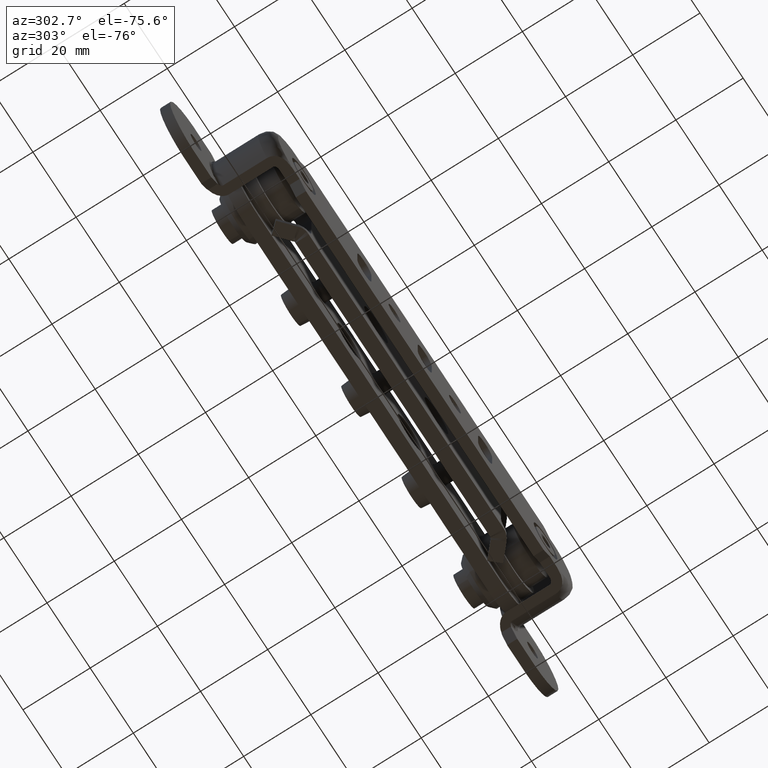
[diagram: clean part render]
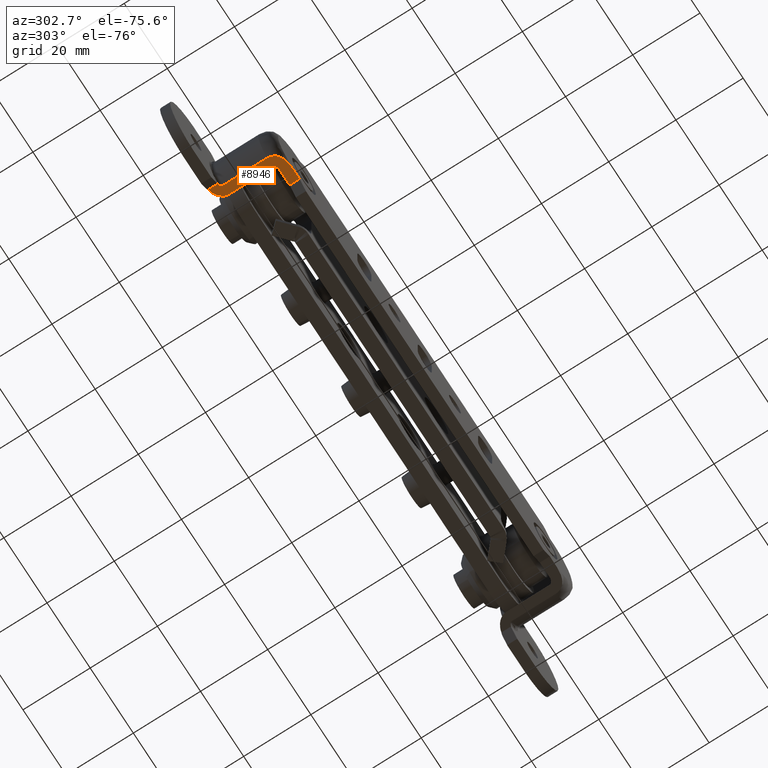
[diagram: same view with one face highlighted and labeled with its STEP entity id]
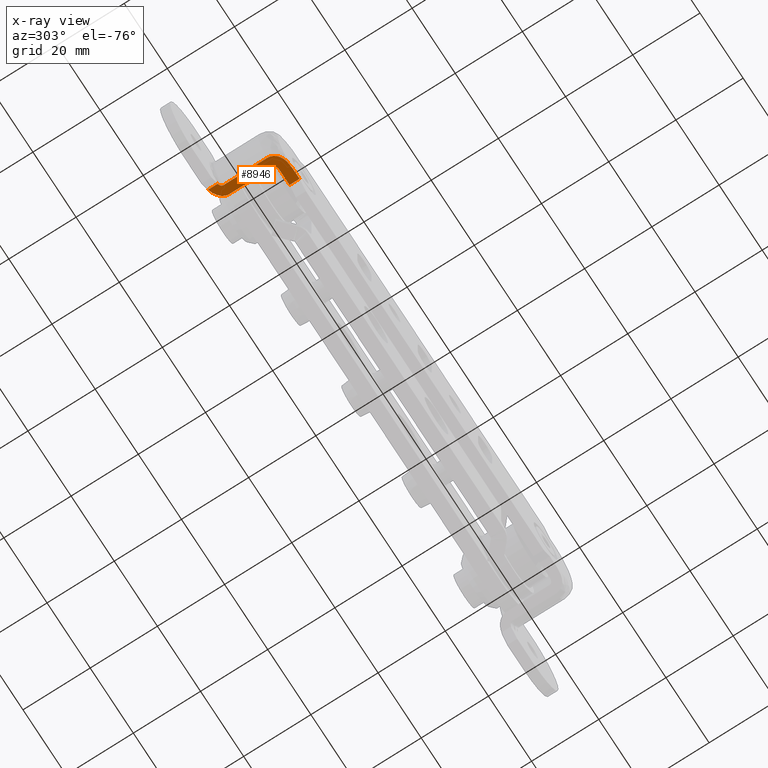
[diagram: x-ray of the same camera — body ghosted, the highlighted face saturated]
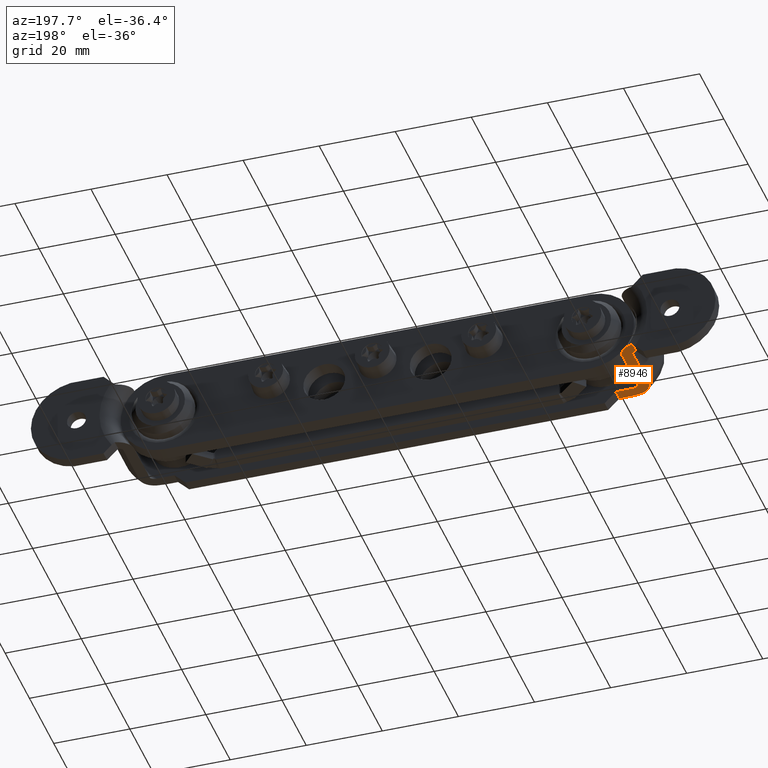
[diagram: same view with one face highlighted and labeled with its STEP entity id]
A machine part, auxiliary view. The second image highlights one B-rep face of the part: STEP entity #8946.
The next image is the same camera in x-ray: the body ghosted, the highlighted face saturated — about 0% of this face is hidden behind the body in this view.
A second angle (auxiliary view) of the same face is appended — the face is thin or edge-on in the first view.
In plain terms, the highlighted planar face has unit normal (0, 0, 1).
Its self-contained STEP definition (entity closure, byte-faithful):
#199 = CARTESIAN_POINT ( 'NONE',  ( -64.17467578644873072, 17.00000280040921297, -8.999999999999998224 ) ) ;
#305 = CARTESIAN_POINT ( 'NONE',  ( -58.99627897886185934, 0.000000000000000000, -9.000000000000001776 ) ) ;
#350 = CARTESIAN_POINT ( 'NONE',  ( -61.42061484230548984, 0.02279593249890190035, -9.000000000000001776 ) ) ;
#356 = CARTESIAN_POINT ( 'NONE',  ( -67.53284671570985154, 20.72370841365938787, -9.000000000000001776 ) ) ;
#367 = ORIENTED_EDGE ( 'NONE', *, *, #8689, .F. ) ;
#397 = CARTESIAN_POINT ( 'NONE',  ( -61.47324816656067981, 0.02481633595312313437, -9.000000000000001776 ) ) ;
#400 = CARTESIAN_POINT ( 'NONE',  ( -65.26095846486273899, 19.37750221460411737, -9.000000000000000000 ) ) ;
#444 = CARTESIAN_POINT ( 'NONE',  ( -65.09058405374237566, 19.19933818434314787, -9.000000000000000000 ) ) ;
#472 = CARTESIAN_POINT ( 'NONE',  ( -63.47445294263462046, 3.139074689296596610, -9.000000000000001776 ) ) ;
#517 = VECTOR ( 'NONE', #3767, 1000.000000000000000 ) ;
#646 = ORIENTED_EDGE ( 'NONE', *, *, #5177, .F. ) ;
#654 = CARTESIAN_POINT ( 'NONE',  ( -63.90477869132573119, 3.399701412393802524, -9.000000000000003553 ) ) ;
#811 = EDGE_CURVE ( 'NONE', #8714, #7723, #7730, .T. ) ;
#866 = CARTESIAN_POINT ( 'NONE',  ( -68.00000000000002842, 17.96227521806613936, -8.999999999999943157 ) ) ;
#1023 = CARTESIAN_POINT ( 'NONE',  ( -68.00000000000002842, 17.96227521806613936, -8.999999999999943157 ) ) ;
#1033 = CARTESIAN_POINT ( 'NONE',  ( -61.34489819457827053, 0.02009384545437246580, -9.000000000000001776 ) ) ;
#1061 = PLANE ( 'NONE',  #8224 ) ;
#1075 = CARTESIAN_POINT ( 'NONE',  ( -60.49684226313189583, 0.002975557048721465866, -9.000000000000001776 ) ) ;
#1081 = CARTESIAN_POINT ( 'NONE',  ( -64.65118848250646977, 18.61914767885723165, -9.000000000000001776 ) ) ;
#1109 = EDGE_CURVE ( 'NONE', #4795, #4133, #1210, .T. ) ;
#1169 = VECTOR ( 'NONE', #8180, 1000.000000000000000 ) ;
#1170 = CARTESIAN_POINT ( 'NONE',  ( -65.80245331666499453, 19.86577989397900978, -9.000000000000003553 ) ) ;
#1210 = LINE ( 'NONE', #5406, #1169 ) ;
#1260 = CARTESIAN_POINT ( 'NONE',  ( -62.73078341576943018, 0.1246777835703829912, -9.000000000000000000 ) ) ;
#1304 = DIRECTION ( 'NONE',  ( -1.000000000000000000, 0.000000000000000000, 0.000000000000000000 ) ) ;
#1350 = CARTESIAN_POINT ( 'NONE',  ( -65.83999515682054948, 1.435453540126782723, -9.000000000000001776 ) ) ;
#1643 = ORIENTED_EDGE ( 'NONE', *, *, #6528, .T. ) ;
#1677 = VERTEX_POINT ( 'NONE', #6749 ) ;
#1754 = CARTESIAN_POINT ( 'NONE',  ( -59.69667796316264230, 0.0002075198999452810330, -9.000000000000003553 ) ) ;
#1758 = CARTESIAN_POINT ( 'NONE',  ( -66.20249008964026416, 20.13302662261079234, -9.000000000000005329 ) ) ;
#1771 = B_SPLINE_CURVE_WITH_KNOTS ( 'NONE', 3,
 ( #866, #4928, #4342, #3022, #7840, #2309, #4391, #2892, #8421, #2214 ),
 .UNSPECIFIED., .F., .F.,
 ( 4, 2, 2, 2, 4 ),
 ( 0.006199016340580815188, 0.006584358985344611684, 0.006969701630108407313, 0.007355044274872202942, 0.007740386919635999438 ),
 .UNSPECIFIED. ) ;
#1798 = CARTESIAN_POINT ( 'NONE',  ( -66.85106329332997177, 20.46147829233893845, -9.000000000000001776 ) ) ;
#1845 = EDGE_CURVE ( 'NONE', #5879, #7529, #2773, .T. ) ;
#1886 = CARTESIAN_POINT ( 'NONE',  ( -65.00936237280822638, 0.7827664732644395995, -9.000000000000001776 ) ) ;
#1941 = DIRECTION ( 'NONE',  ( -0.000000000000000000, 1.000000000000000000, -0.000000000000000000 ) ) ;
#1974 = CARTESIAN_POINT ( 'NONE',  ( 59.00000000000000000, 3.000000000000000000, -9.000000000000001776 ) ) ;
#1980 = CARTESIAN_POINT ( 'NONE',  ( -62.72644104743438476, 0.1241123016175773308, -9.000000000000000000 ) ) ;
#2012 = CARTESIAN_POINT ( 'NONE',  ( -62.98896920703085556, 3.015566849190165488, -9.000000000000000000 ) ) ;
#2025 = CARTESIAN_POINT ( 'NONE',  ( -63.95567946769327250, 0.3792884699072048282, -9.000000000000003553 ) ) ;
#2039 = VERTEX_POINT ( 'NONE', #5982 ) ;
#2069 = CARTESIAN_POINT ( 'NONE',  ( -63.92669555675943371, 0.3706002052444994366, -9.000000000000003553 ) ) ;
#2128 = ORIENTED_EDGE ( 'NONE', *, *, #1109, .F. ) ;
#2131 = ORIENTED_EDGE ( 'NONE', *, *, #6003, .F. ) ;
#2214 = CARTESIAN_POINT ( 'NONE',  ( -66.93725393319363093, 17.00000000000007816, -9.000000000000001776 ) ) ;
#2256 = ORIENTED_EDGE ( 'NONE', *, *, #1845, .F. ) ;
#2309 = CARTESIAN_POINT ( 'NONE',  ( -67.19935369845809703, 17.57438427322858843, -9.000000000000003553 ) ) ;
#2381 = CARTESIAN_POINT ( 'NONE',  ( -60.23405344203700906, 0.001599432324862048093, -9.000000000000003553 ) ) ;
#2465 = CARTESIAN_POINT ( 'NONE',  ( -60.19679675217615511, 0.001425029715424259514, -9.000000000000003553 ) ) ;
#2492 = CARTESIAN_POINT ( 'NONE',  ( -64.17467578644873072, 4.000000000000000000, -9.000000000000001776 ) ) ;
#2515 = CARTESIAN_POINT ( 'NONE',  ( -67.99999999999997158, 20.84661142107295007, -9.000000000000001776 ) ) ;
#2557 = CARTESIAN_POINT ( 'NONE',  ( -66.04356545457692107, 1.651733367576155853, -9.000000000000005329 ) ) ;
#2596 = CARTESIAN_POINT ( 'NONE',  ( -66.93722149341820682, 3.574652381409141988, -9.000000000000001776 ) ) ;
#2601 = CARTESIAN_POINT ( 'NONE',  ( -67.07668570014867271, 20.55875690415725643, -8.999999999999998224 ) ) ;
#2640 = CARTESIAN_POINT ( 'NONE',  ( -63.94409775497640425, 0.3758053830288545227, -9.000000000000003553 ) ) ;
#2682 = EDGE_CURVE ( 'NONE', #7529, #2039, #3922, .T. ) ;
#2690 = CARTESIAN_POINT ( 'NONE',  ( -66.01057973287821312, 1.614854538624034053, -9.000000000000001776 ) ) ;
#2732 = CARTESIAN_POINT ( 'NONE',  ( -64.41210828691204426, 0.5180409605082448854, -9.000000000000001776 ) ) ;
#2766 = VECTOR ( 'NONE', #6452, 1000.000000000000000 ) ;
#2773 = LINE ( 'NONE', #5539, #3149 ) ;
#2892 = CARTESIAN_POINT ( 'NONE',  ( -66.97740501048104989, 17.25769637149324254, -9.000000000000003553 ) ) ;
#3022 = CARTESIAN_POINT ( 'NONE',  ( -67.51509680362731558, 17.79778224756964988, -9.000000000000000000 ) ) ;
#3056 = VECTOR ( 'NONE', #1941, 1000.000000000000000 ) ;
#3090 = CARTESIAN_POINT ( 'NONE',  ( -58.00000000000013500, 0.000000000000000000, -9.000000000000001776 ) ) ;
#3127 = DIRECTION ( 'NONE',  ( -0.000000000000000000, 0.000000000000000000, 1.000000000000000000 ) ) ;
#3138 = CARTESIAN_POINT ( 'NONE',  ( -61.48364454195650097, 0.02522853426618847442, -9.000000000000001776 ) ) ;
#3149 = VECTOR ( 'NONE', #7665, 1000.000000000000000 ) ;
#3167 = FACE_OUTER_BOUND ( 'NONE', #6048, .T. ) ;
#3212 = CARTESIAN_POINT ( 'NONE',  ( -64.05905132844281979, 3.600784533645108532, -8.999999999999998224 ) ) ;
#3229 = CARTESIAN_POINT ( 'NONE',  ( -63.63520051282576873, 0.2903481720600624705, -9.000000000000001776 ) ) ;
#3259 = CARTESIAN_POINT ( 'NONE',  ( -67.99999999999997158, 0.000000000000000000, -9.000000000000001776 ) ) ;
#3361 = CARTESIAN_POINT ( 'NONE',  ( -62.57592062619804807, 0.1054841539096383479, -9.000000000000001776 ) ) ;
#3395 = CARTESIAN_POINT ( 'NONE',  ( -64.15906121609934587, 3.831848299327946350, -9.000000000000003553 ) ) ;
#3767 = DIRECTION ( 'NONE',  ( -0.000000000000000000, 1.000000000000000000, -0.000000000000000000 ) ) ;
#3819 = CARTESIAN_POINT ( 'NONE',  ( -61.18640405122805959, 0.01512959411794043661, -9.000000000000001776 ) ) ;
#3922 = LINE ( 'NONE', #8143, #3056 ) ;
#4004 = CARTESIAN_POINT ( 'NONE',  ( -66.21489867643484217, 1.850670901860933748, -9.000000000000003553 ) ) ;
#4133 = VERTEX_POINT ( 'NONE', #8027 ) ;
#4342 = CARTESIAN_POINT ( 'NONE',  ( -67.74980989571328394, 17.89913187267034900, -9.000000000000003553 ) ) ;
#4391 = CARTESIAN_POINT ( 'NONE',  ( -67.10870574329956639, 17.47864565875020304, -9.000000000000001776 ) ) ;
#4461 = LINE ( 'NONE', #7951, #517 ) ;
#4507 = CARTESIAN_POINT ( 'NONE',  ( -60.23995565308170796, 0.001629326539081415092, -9.000000000000001776 ) ) ;
#4556 = CARTESIAN_POINT ( 'NONE',  ( -64.20632508626111701, 17.48278231892906831, -9.000000000000003553 ) ) ;
#4638 = CARTESIAN_POINT ( 'NONE',  ( -66.63960664709823334, 2.566507873351498326, -9.000000000000000000 ) ) ;
#4673 = CARTESIAN_POINT ( 'NONE',  ( -62.65891053163814917, 2.999999999999721556, -9.000000000000001776 ) ) ;
#4733 = CARTESIAN_POINT ( 'NONE',  ( -66.86281778183821700, 3.163110897423166978, -9.000000000000003553 ) ) ;
#4769 = CARTESIAN_POINT ( 'NONE',  ( -63.76909031524316873, 3.296221886127323142, -9.000000000000005329 ) ) ;
#4780 = CARTESIAN_POINT ( 'NONE',  ( -66.05864196809351085, 1.668898467027464694, -9.000000000000003553 ) ) ;
#4795 = VERTEX_POINT ( 'NONE', #7402 ) ;
#4825 = CARTESIAN_POINT ( 'NONE',  ( -66.93724683350782811, 4.000000000000003553, -8.999991953236266440 ) ) ;
#4928 = CARTESIAN_POINT ( 'NONE',  ( -67.87391239341377513, 17.93706646115579417, -9.000000000000001776 ) ) ;
#4967 = VERTEX_POINT ( 'NONE', #1023 ) ;
#4974 = CARTESIAN_POINT ( 'NONE',  ( -62.65891053163814917, 2.999999999999721556, -9.000000000000001776 ) ) ;
#5052 = CARTESIAN_POINT ( 'NONE',  ( -64.17467578644873072, 21.00000000000000000, -8.999999999999998224 ) ) ;
#5144 = CARTESIAN_POINT ( 'NONE',  ( -60.24411822185331999, 0.001650823027962449461, -9.000000000000005329 ) ) ;
#5177 = EDGE_CURVE ( 'NONE', #5998, #8714, #6850, .T. ) ;
#5190 = CARTESIAN_POINT ( 'NONE',  ( -59.30725760537736591, 1.003040517905943966E-07, -9.000000000000001776 ) ) ;
#5281 = CARTESIAN_POINT ( 'NONE',  ( -64.17467578644873072, 17.00000280040921297, -8.999999999999998224 ) ) ;
#5309 = ORIENTED_EDGE ( 'NONE', *, *, #811, .F. ) ;
#5320 = CARTESIAN_POINT ( 'NONE',  ( -63.28547100039168072, 0.2095249812817248647, -9.000000000000000000 ) ) ;
#5356 = CARTESIAN_POINT ( 'NONE',  ( -62.82476275316820136, 2.999999999999944045, -9.000000000000003553 ) ) ;
#5406 = CARTESIAN_POINT ( 'NONE',  ( -66.93725393319377304, 21.00000000000000000, -8.999999999999998224 ) ) ;
#5410 = CARTESIAN_POINT ( 'NONE',  ( -62.65756592482950538, 0.1153453441225205517, -9.000000000000001776 ) ) ;
#5482 = CARTESIAN_POINT ( 'NONE',  ( -58.99627897886185934, 0.000000000000000000, -9.000000000000001776 ) ) ;
#5504 = CARTESIAN_POINT ( 'NONE',  ( -66.55018215824030392, 2.379908710597004262, -9.000000000000001776 ) ) ;
#5539 = CARTESIAN_POINT ( 'NONE',  ( -67.99999999999997158, 0.000000000000000000, -9.000000000000001776 ) ) ;
#5767 = ORIENTED_EDGE ( 'NONE', *, *, #7508, .T. ) ;
#5818 = CARTESIAN_POINT ( 'NONE',  ( -60.01616844543300999, 0.0008124937213012955626, -9.000000000000005329 ) ) ;
#5867 = CARTESIAN_POINT ( 'NONE',  ( -64.33096232618949273, 17.95787206477898934, -9.000000000000003553 ) ) ;
#5879 = VERTEX_POINT ( 'NONE', #5482 ) ;
#5908 = CARTESIAN_POINT ( 'NONE',  ( -61.48670380652112044, 0.02535021123681122437, -9.000000000000000000 ) ) ;
#5952 = CARTESIAN_POINT ( 'NONE',  ( -60.22198567372003453, 0.001540352850120249410, -9.000000000000001776 ) ) ;
#5982 = CARTESIAN_POINT ( 'NONE',  ( -58.00000000000013500, 2.999999999999999112, -9.000000000000001776 ) ) ;
#5997 = CARTESIAN_POINT ( 'NONE',  ( -63.80342834129602636, 0.3351171348793549609, -9.000000000000003553 ) ) ;
#5998 = VERTEX_POINT ( 'NONE', #4974 ) ;
#6003 = EDGE_CURVE ( 'NONE', #4967, #4795, #1771, .T. ) ;
#6031 = DIRECTION ( 'NONE',  ( 1.000000000000000000, 0.000000000000000000, 0.000000000000000000 ) ) ;
#6038 = B_SPLINE_CURVE_WITH_KNOTS ( 'NONE', 3,
 ( #2515, #7460, #356, #2601, #1798, #1758, #1170, #400, #444, #7272, #1081, #6629, #5867, #4556, #8638, #5281 ),
 .UNSPECIFIED., .F., .F.,
 ( 4, 2, 2, 2, 2, 2, 2, 4 ),
 ( 0.02266943965658084481, 0.02339448191285991088, 0.02411952416913897695, 0.02556960868169715073, 0.02629465093797625150, 0.02701969319425535226, 0.02774473545053445303, 0.02846977770681355380 ),
 .UNSPECIFIED. ) ;
#6048 = EDGE_LOOP ( 'NONE', ( #2256, #1643, #2128, #2131, #5767, #8813, #5309, #646, #367, #6744 ) ) ;
#6082 = LINE ( 'NONE', #1974, #8947 ) ;
#6452 = DIRECTION ( 'NONE',  ( 0.000000000000000000, 1.000000000000000000, 0.000000000000000000 ) ) ;
#6528 = EDGE_CURVE ( 'NONE', #5879, #4133, #6714, .T. ) ;
#6579 = CARTESIAN_POINT ( 'NONE',  ( -61.45759056018216171, 0.02420196636524500622, -9.000000000000001776 ) ) ;
#6629 = CARTESIAN_POINT ( 'NONE',  ( -64.42185174443321216, 18.18497390192303698, -9.000000000000003553 ) ) ;
#6714 = B_SPLINE_CURVE_WITH_KNOTS ( 'NONE', 3,
 ( #305, #5190, #1754, #5818, #8589, #2465, #5952, #2381, #4507, #7268, #5144, #7915, #1075, #7231, #3819, #1033, #350, #6579, #397, #3138, #5908, #8680, #7999, #8226, #3361, #5410, #8185, #8088, #1980, #1260, #7406, #5320, #3229, #5997, #8949, #2069, #2640, #2025, #8768, #2732, #1886, #8812, #1350, #8134, #2690, #2557, #4780, #4004, #6720, #5504, #4638, #4733, #2596, #4825 ),
 .UNSPECIFIED., .F., .F.,
 ( 4, 1, 1, 1, 1, 1, 1, 1, 2, 2, 1, 1, 1, 1, 1, 2, 2, 1, 1, 1, 1, 1, 2, 2, 1, 1, 1, 1, 1, 2, 2, 1, 1, 1, 1, 2, 2, 2, 2, 4 ),
 ( 0.000000000000000000, 0.06249999999967280340, 0.09374999999950919816, 0.1093749999994274025, 0.1171874999993865046, 0.1210937499993660627, 0.1230468749993558347, 0.1240234374993507138, 0.1245117187493501865, 0.1249999999993496591, 0.1874999999993229860, 0.2187499999993096633, 0.2343749999993018363, 0.2421874999992979505, 0.2460937499992959798, 0.2480468749992949806, 0.2499999999992940092, 0.3124999999993203770, 0.3437499999993345878, 0.3593749999993438582, 0.3671874999993485211, 0.3710937499993508526, 0.3730468749993543498, 0.3749999999993577915, 0.4374999999994657052, 0.4687499999995196620, 0.4843749999995466404, 0.4921874999995622391, 0.4960937499995679012, 0.4980468749995707323, 0.4999999999995735633, 0.6249999999996838085, 0.6874999999997388755, 0.7187499999997647437, 0.7343749999997776223, 0.7421874999997826183, 0.7499999999997875033, 0.8124999999998406830, 0.8749999999998938627, 1.000000000000000000 ),
 .UNSPECIFIED. ) ;
#6720 = CARTESIAN_POINT ( 'NONE',  ( -66.33751331353953162, 2.021148662660044781, -9.000000000000000000 ) ) ;
#6744 = ORIENTED_EDGE ( 'NONE', *, *, #2682, .F. ) ;
#6749 = CARTESIAN_POINT ( 'NONE',  ( -67.99999999999997158, 20.84661142107295007, -9.000000000000001776 ) ) ;
#6846 = CARTESIAN_POINT ( 'NONE',  ( -64.10055775919030907, 3.673291901958740446, -9.000000000000000000 ) ) ;
#6850 = B_SPLINE_CURVE_WITH_KNOTS ( 'NONE', 3,
 ( #4673, #5356, #2012, #8797, #472, #4769, #654, #3212, #6846, #3395, #8711, #2492 ),
 .UNSPECIFIED., .F., .F.,
 ( 4, 2, 2, 2, 2, 4 ),
 ( 0.006406519166941933643, 0.006907413429075019706, 0.007408307691208106636, 0.007909201953341193567, 0.008159649084407723588, 0.008410096215474255343 ),
 .UNSPECIFIED. ) ;
#7061 = EDGE_CURVE ( 'NONE', #1677, #7723, #6038, .T. ) ;
#7231 = CARTESIAN_POINT ( 'NONE',  ( -60.84117237294495339, 0.006960782455584521924, -9.000000000000000000 ) ) ;
#7268 = CARTESIAN_POINT ( 'NONE',  ( -60.24245695643365650, 0.001642214304500072639, -9.000000000000003553 ) ) ;
#7272 = CARTESIAN_POINT ( 'NONE',  ( -64.78657247789325879, 18.82080049966417334, -9.000000000000000000 ) ) ;
#7402 = CARTESIAN_POINT ( 'NONE',  ( -66.93725393319363093, 17.00000000000007816, -9.000000000000001776 ) ) ;
#7406 = CARTESIAN_POINT ( 'NONE',  ( -62.96294766603057269, 0.1551875060892819180, -9.000000000000003553 ) ) ;
#7460 = CARTESIAN_POINT ( 'NONE',  ( -67.76460192452876186, 20.79212740923761160, -9.000000000000001776 ) ) ;
#7508 = EDGE_CURVE ( 'NONE', #4967, #1677, #4461, .T. ) ;
#7529 = VERTEX_POINT ( 'NONE', #3090 ) ;
#7665 = DIRECTION ( 'NONE',  ( 1.000000000000000000, 0.000000000000000000, 0.000000000000000000 ) ) ;
#7723 = VERTEX_POINT ( 'NONE', #199 ) ;
#7730 = LINE ( 'NONE', #5052, #2766 ) ;
#7840 = CARTESIAN_POINT ( 'NONE',  ( -67.40162203992997547, 17.73311228745848567, -9.000000000000001776 ) ) ;
#7915 = CARTESIAN_POINT ( 'NONE',  ( -60.24380858063590694, 0.001649175040125326142, -9.000000000000001776 ) ) ;
#7951 = CARTESIAN_POINT ( 'NONE',  ( -67.99999999999997158, 0.000000000000000000, -9.000000000000001776 ) ) ;
#7999 = CARTESIAN_POINT ( 'NONE',  ( -62.05680575941756416, 0.05462852453350110910, -9.000000000000001776 ) ) ;
#8027 = CARTESIAN_POINT ( 'NONE',  ( -66.93724683350782811, 4.000000000000003553, -8.999991953236266440 ) ) ;
#8088 = CARTESIAN_POINT ( 'NONE',  ( -62.71502609894788804, 0.1226328840369856898, -9.000000000000000000 ) ) ;
#8134 = CARTESIAN_POINT ( 'NONE',  ( -65.96055379863041424, 1.560019502898753352, -9.000000000000001776 ) ) ;
#8143 = CARTESIAN_POINT ( 'NONE',  ( -58.00000000000013500, 0.000000000000000000, -9.000000000000001776 ) ) ;
#8180 = DIRECTION ( 'NONE',  ( -0.000000000000000000, -1.000000000000000000, -0.000000000000000000 ) ) ;
#8185 = CARTESIAN_POINT ( 'NONE',  ( -62.69786637637750459, 0.1204243590843403211, -9.000000000000000000 ) ) ;
#8224 = AXIS2_PLACEMENT_3D ( 'NONE', #3259, #3127, #6031 ) ;
#8226 = CARTESIAN_POINT ( 'NONE',  ( -62.40845244679347559, 0.08694913232689667482, -9.000000000000001776 ) ) ;
#8421 = CARTESIAN_POINT ( 'NONE',  ( -66.93725393319382988, 17.12911499819203698, -9.000000000000001776 ) ) ;
#8589 = CARTESIAN_POINT ( 'NONE',  ( -60.14220536944839779, 0.001205726705182703961, -9.000000000000005329 ) ) ;
#8638 = CARTESIAN_POINT ( 'NONE',  ( -64.17467603083093763, 17.24224444283976609, -9.000000000000001776 ) ) ;
#8680 = CARTESIAN_POINT ( 'NONE',  ( -61.72674803555233325, 0.03506703563417229441, -9.000000000000000000 ) ) ;
#8689 = EDGE_CURVE ( 'NONE', #2039, #5998, #6082, .T. ) ;
#8711 = CARTESIAN_POINT ( 'NONE',  ( -64.17467578644878756, 3.915734646215095704, -9.000000000000005329 ) ) ;
#8714 = VERTEX_POINT ( 'NONE', #8897 ) ;
#8768 = CARTESIAN_POINT ( 'NONE',  ( -63.96028035227391229, 0.3806777288313888952, -9.000000000000003553 ) ) ;
#8797 = CARTESIAN_POINT ( 'NONE',  ( -63.31336032048307061, 3.084741557952850322, -9.000000000000000000 ) ) ;
#8812 = CARTESIAN_POINT ( 'NONE',  ( -65.58355202560747443, 1.199851430264189833, -9.000000000000001776 ) ) ;
#8813 = ORIENTED_EDGE ( 'NONE', *, *, #7061, .T. ) ;
#8897 = CARTESIAN_POINT ( 'NONE',  ( -64.17467578644873072, 4.000000000000000000, -9.000000000000001776 ) ) ;
#8946 = ADVANCED_FACE ( 'NONE', ( #3167 ), #1061, .F. ) ;
#8947 = VECTOR ( 'NONE', #1304, 1000.000000000000000 ) ;
#8949 = CARTESIAN_POINT ( 'NONE',  ( -63.88588302359439552, 0.3585909581465270834, -9.000000000000003553 ) ) ;